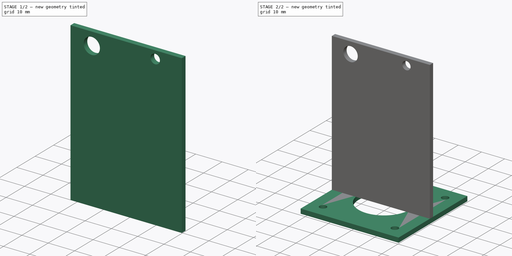
[diagram: build sequence overview — one tinted view per stage of 2, left to right]
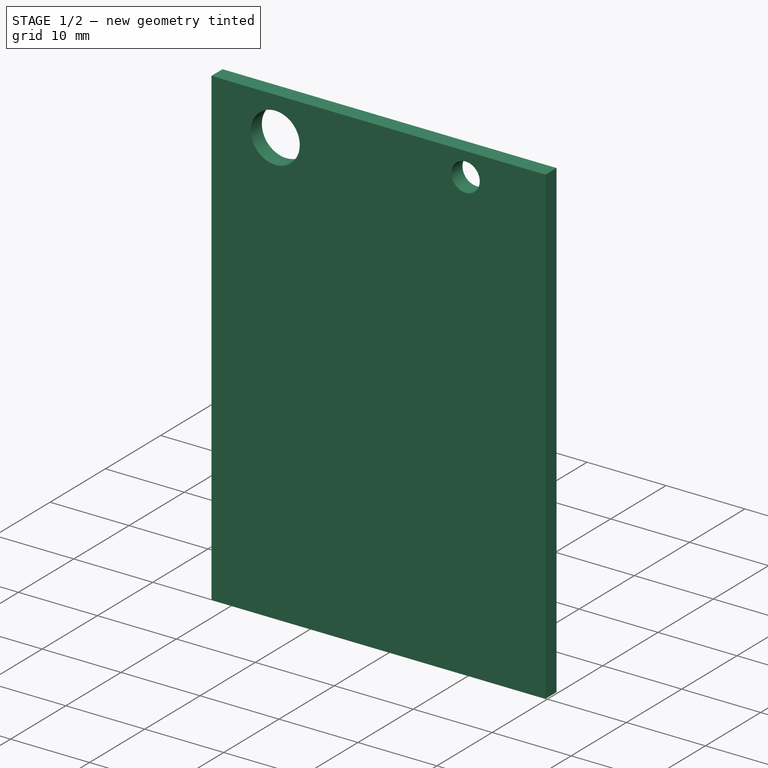
[diagram: stage 1 of 2 — iso view after this stage's code; geometry added in this stage tinted green]
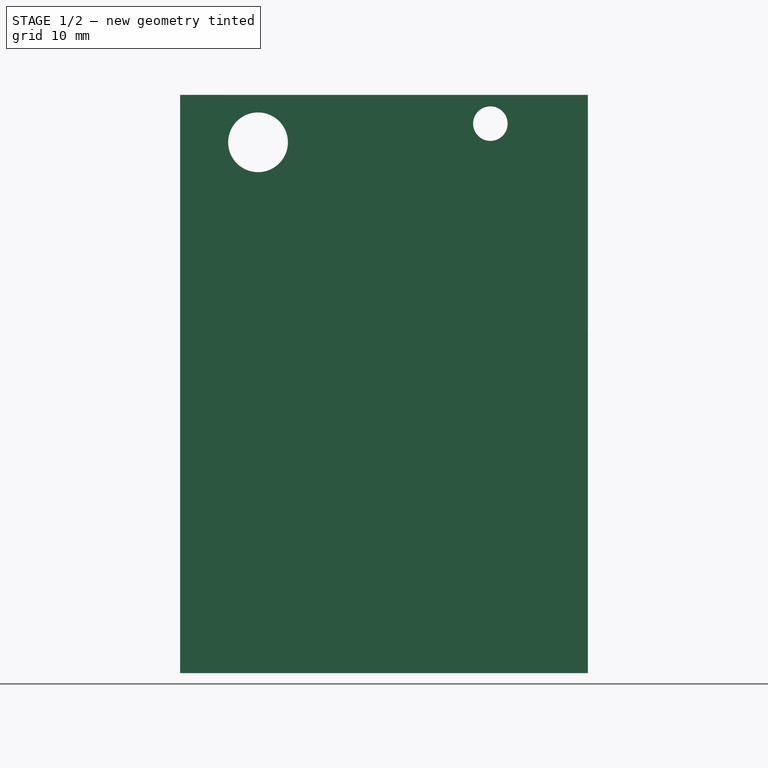
[diagram: stage 1 of 2 — front view after this stage's code; geometry added in this stage tinted green]
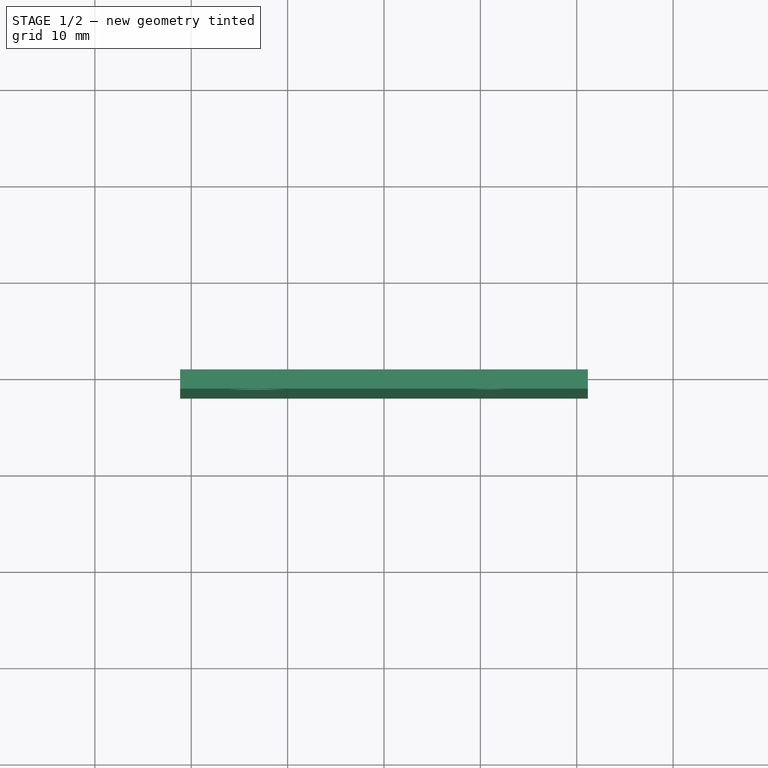
[diagram: stage 1 of 2 — top view after this stage's code; geometry added in this stage tinted green]
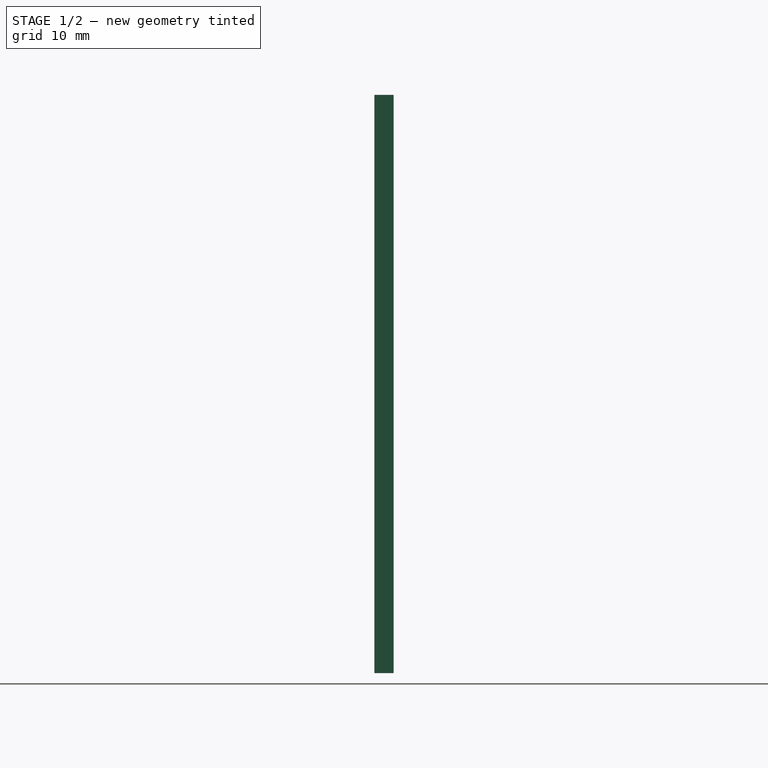
[diagram: stage 1 of 2 — right view after this stage's code; geometry added in this stage tinted green]
FCSTD DOCUMENT  (FreeCAD 0.20R)
Label: sdfsd
License: All rights reserved
LicenseURL: http://en.wikipedia.org/wiki/All_rights_reserved
objects: Sketcher::SketchObject×2, PartDesign::Pad×2, PartDesign::Body×2
note: 8 computed .brp shape members not serialized (recipe doc carries the construction recipe); baked Part::Feature solids carry a one-line shape summary decoded from their .brp

FEATURE [PartDesign::Body] Body225
  Group = -> [Sketch300,Pad141]
  Origin = -> Origin318
  Tip = -> Pad141
FEATURE [Sketcher::SketchObject] Sketch301
  FullyConstrained = false
  MapMode = 5
  Placement = pos=(0,0,0) rot=(1,0,0;1.5708rad)
  Support = -> [XZ_Plane314]
  sketch-geometry (8):
    g0: LineSegment StartX=-21.15 StartY=0 StartZ=0 EndX=21.15 EndY=0 EndZ=0
    g1: LineSegment StartX=21.15 StartY=0 StartZ=0 EndX=21.15 EndY=60 EndZ=0
    g2: LineSegment StartX=21.15 StartY=60 StartZ=0 EndX=-21.15 EndY=60 EndZ=0
    g3: LineSegment StartX=-21.15 StartY=60 StartZ=0 EndX=-21.15 EndY=0 EndZ=0
    g4: ArcOfCircle CenterX=-12.667 CenterY=54.8353 CenterZ=0 NormalX=0 NormalY=0 NormalZ=1 AngleXU=0 Radius=2 StartAngle=0 EndAngle=3.14159
    g5: ArcOfCircle CenterX=-12.667 CenterY=15.1777 CenterZ=0 NormalX=0 NormalY=0 NormalZ=1 AngleXU=0 Radius=2 StartAngle=3.14159 EndAngle=6.28319
    g6: LineSegment StartX=-14.667 StartY=54.8353 StartZ=0 EndX=-14.667 EndY=15.1777 EndZ=0
    g7: LineSegment StartX=-10.667 StartY=15.1777 StartZ=0 EndX=-10.667 EndY=54.8353 EndZ=0
  constraints (20):
    c: Coincident(g0,g1)
    c: Coincident(g1,g2)
    c: Coincident(g2,g3)
    c: Coincident(g3,g0)
    c: Horizontal(g0)
    c: Horizontal(g2)
    c: Vertical(g1)
    c: Vertical(g3)
    c: DistanceY(g0,g-1) = 0
    c: DistanceX(g-1,g0) = 21.15
    c: DistanceX(g0,g-1) = 21.15
    c: DistanceY(g0,g1) = 60
    c: Equal(g4,g5)
    c: Diameter(g4) = 4
    c: Vertical(g6)
    c: Vertical(g7)
    c: Tangent(g4,g6) = -1.5708
    c: Tangent(g4,g7) = -1.5708
    c: Tangent(g5,g7) = -1.5708
    c: Tangent(g5,g6) = -1.5708
FEATURE [PartDesign::Pad] Pad142
  Direction = (0,-1,-2e-16)
  Length = 2
  Length2 = 10
  Placement = pos=(0,0,0) rot=(1,0,0;1.5708rad)
  Profile = -> Sketch301
  ReferenceAxis = -> Sketch301 [N_Axis]
  Type = 0
FEATURE [PartDesign::Body] Body226
  Group = -> [Sketch301,Pad142]
  Origin = -> Origin320
  Placement = pos=(0,23,-2) rot=(0,0,1;0rad)
  Tip = -> Pad142
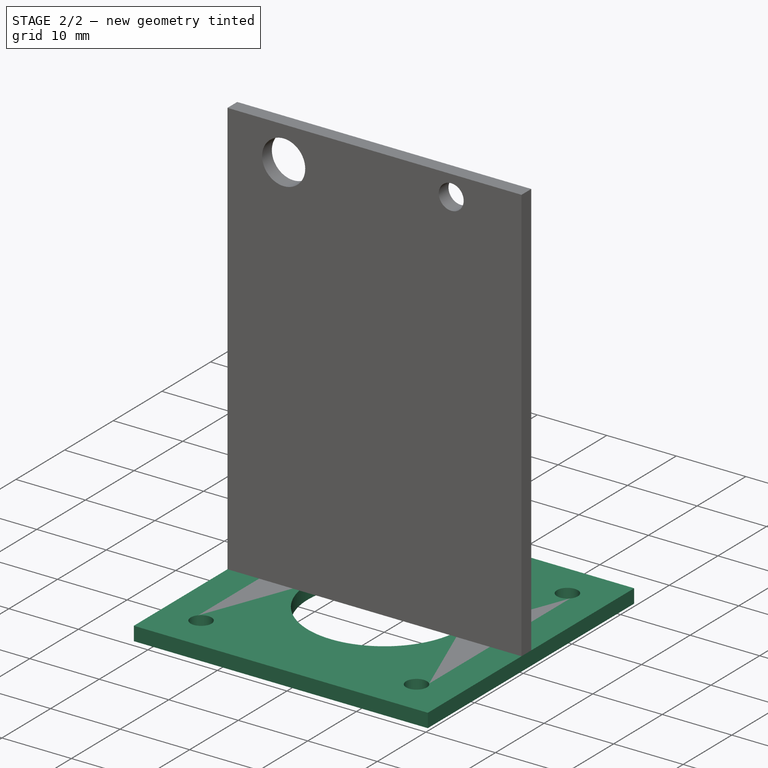
[diagram: stage 2 of 2 — iso view after this stage's code; geometry added in this stage tinted green]
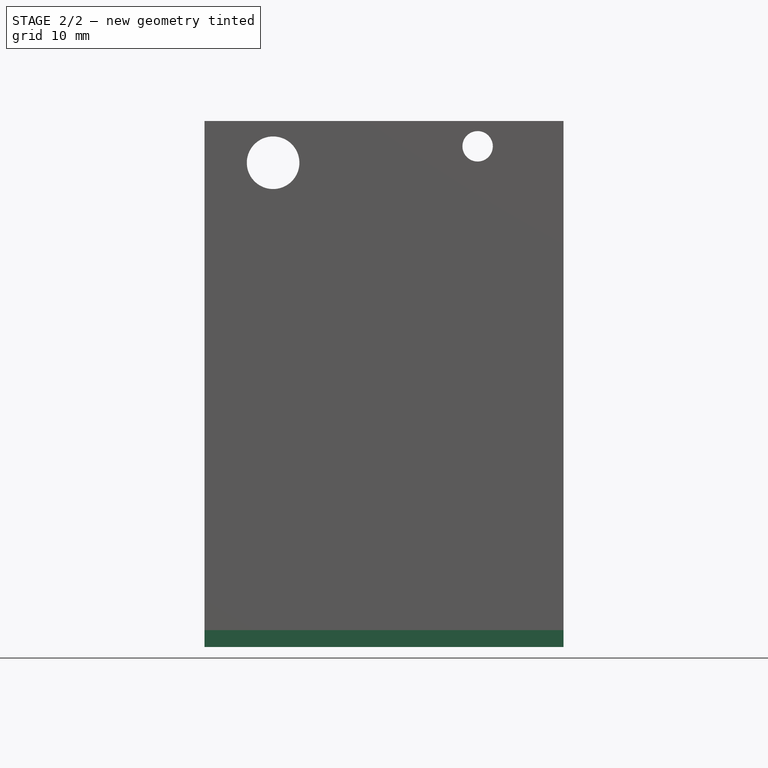
[diagram: stage 2 of 2 — front view after this stage's code; geometry added in this stage tinted green]
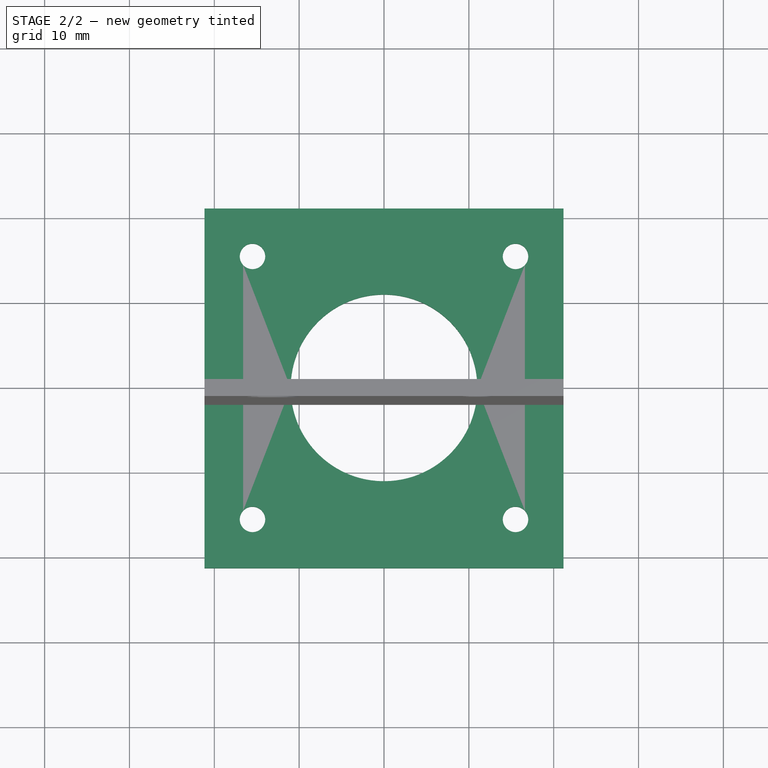
[diagram: stage 2 of 2 — top view after this stage's code; geometry added in this stage tinted green]
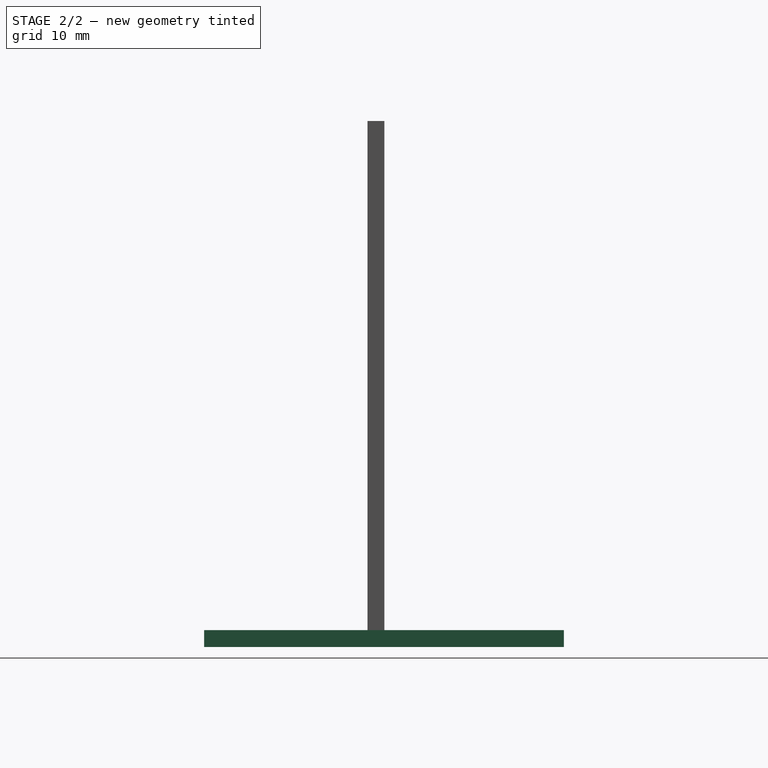
[diagram: stage 2 of 2 — right view after this stage's code; geometry added in this stage tinted green]
FEATURE [Sketcher::SketchObject] Sketch300
  FullyConstrained = false
  MapMode = 3
  Placement = pos=(0,0,0) rot=(1,0,0;3.14159rad)
  sketch-geometry (9):
    g0: LineSegment StartX=-21.15 StartY=21.25 StartZ=0 EndX=21.15 EndY=21.25 EndZ=0
    g1: LineSegment StartX=21.15 StartY=21.25 StartZ=0 EndX=21.15 EndY=-21.15 EndZ=0
    g2: LineSegment StartX=21.15 StartY=-21.15 StartZ=0 EndX=-21.15 EndY=-21.15 EndZ=0
    g3: LineSegment StartX=-21.15 StartY=-21.15 StartZ=0 EndX=-21.15 EndY=21.25 EndZ=0
    g4: Circle CenterX=0 CenterY=0 CenterZ=0 NormalX=0 NormalY=0 NormalZ=1 AngleXU=0 Radius=11
    g5: Circle CenterX=-15.5 CenterY=15.5 CenterZ=0 NormalX=0 NormalY=0 NormalZ=1 AngleXU=0 Radius=1.5
    g6: Circle CenterX=15.5 CenterY=15.5 CenterZ=0 NormalX=0 NormalY=0 NormalZ=1 AngleXU=0 Radius=1.5
    g7: Circle CenterX=-15.5 CenterY=-15.5 CenterZ=0 NormalX=0 NormalY=0 NormalZ=1 AngleXU=0 Radius=1.5
    g8: Circle CenterX=15.5 CenterY=-15.5 CenterZ=0 NormalX=0 NormalY=0 NormalZ=1 AngleXU=0 Radius=1.5
  constraints (18):
    c: Coincident(g0,g1)
    c: Coincident(g1,g2)
    c: Coincident(g2,g3)
    c: Coincident(g3,g0)
    c: Horizontal(g0)
    c: Horizontal(g2)
    c: Vertical(g1)
    c: Vertical(g3)
    c: Coincident(g4,g-1)
    c: DistanceX(g0,g4) = 21.15
    c: DistanceX(g4,g0) = 21.15
    c: DistanceY(g4,g0) = 21.25
    c: DistanceY(g2,g4) = 21.15
    c: Equal(g5,g6)
    c: Equal(g5,g8)
    c: Equal(g5,g7)
    c: Diameter(g5) = 3
    c: Diameter(g4) = 22
FEATURE [PartDesign::Pad] Pad141
  Direction = (0,2e-16,-1)
  Length = 2
  Length2 = 10
  Placement = pos=(0,0,0) rot=(1,0,0;3.14159rad)
  Profile = -> Sketch300
  ReferenceAxis = -> Sketch300 [N_Axis]
  Type = 0
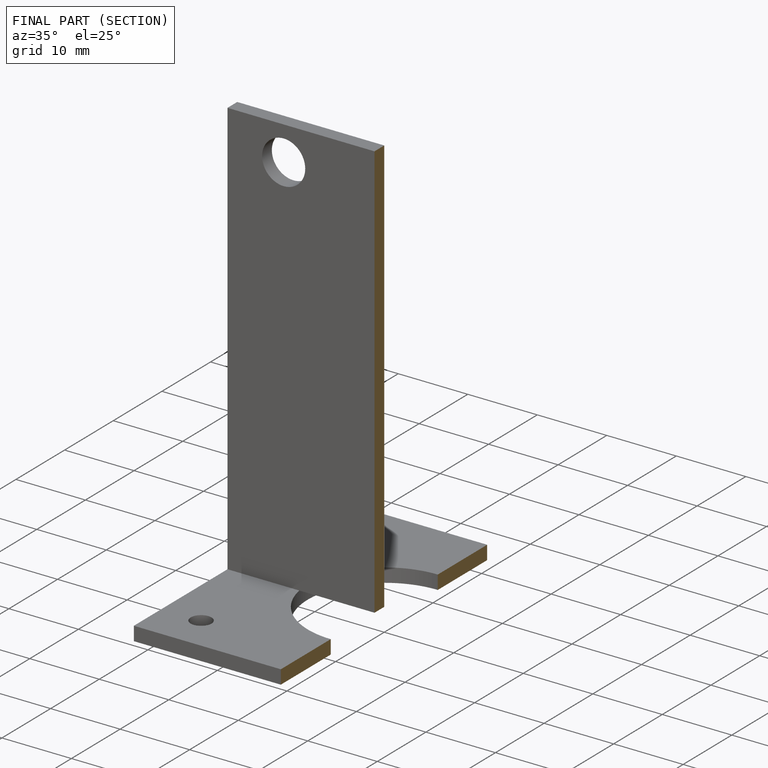
[diagram: finished part — half-section view (interior)]
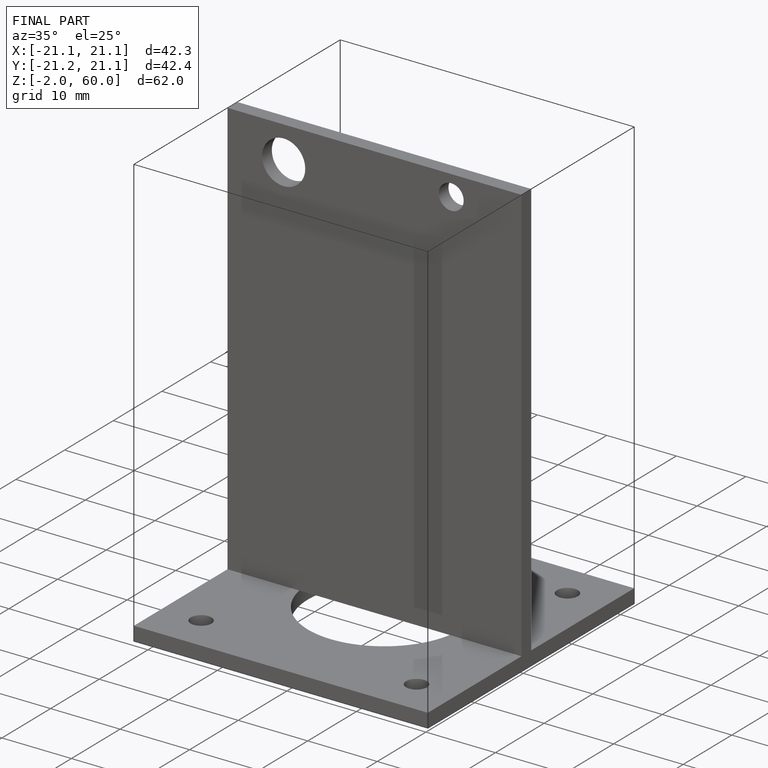
[diagram: finished part — iso view with bounding-box wireframe]
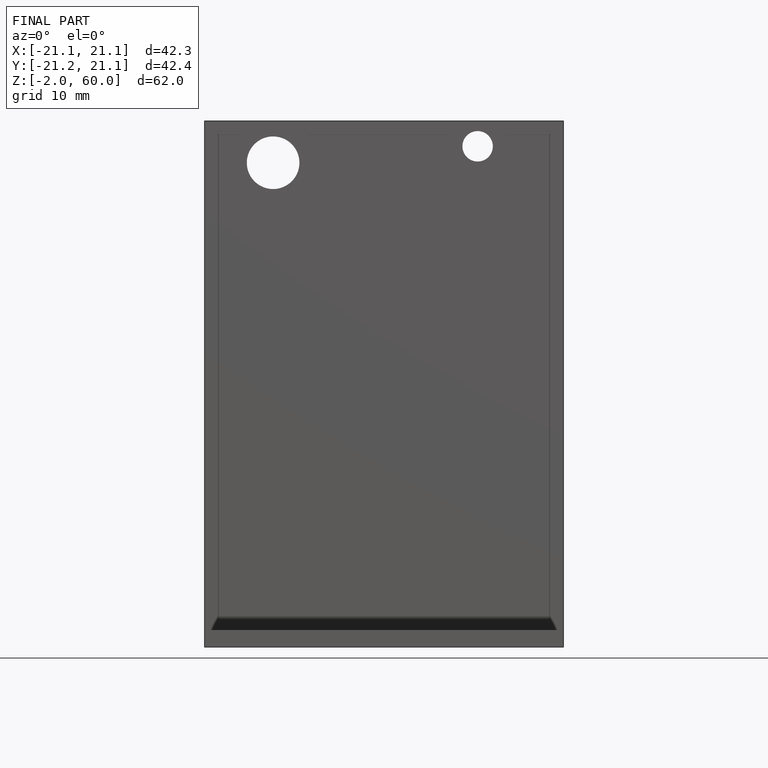
[diagram: finished part — front view with bounding-box wireframe]
